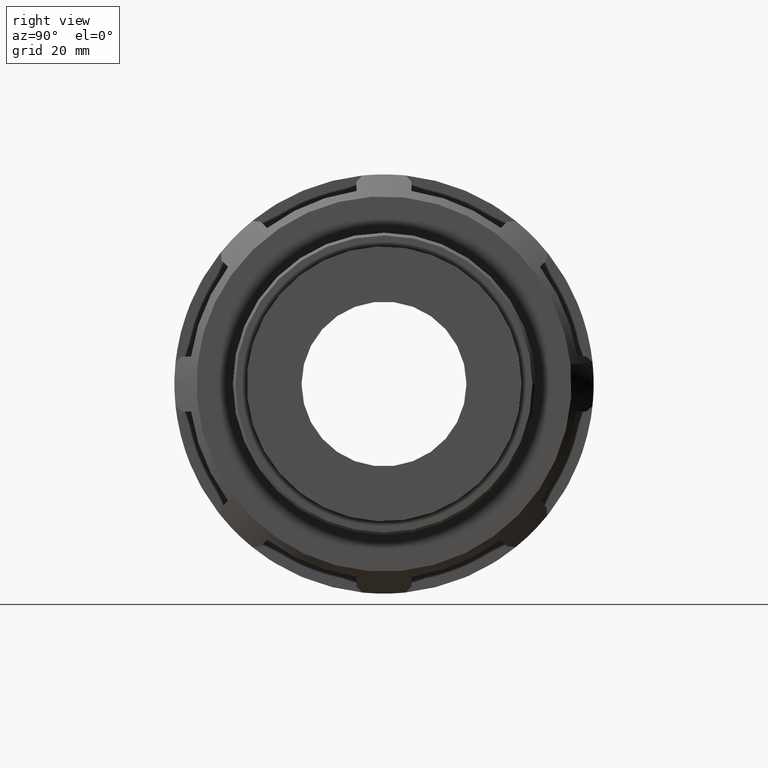
[diagram: clean part render]
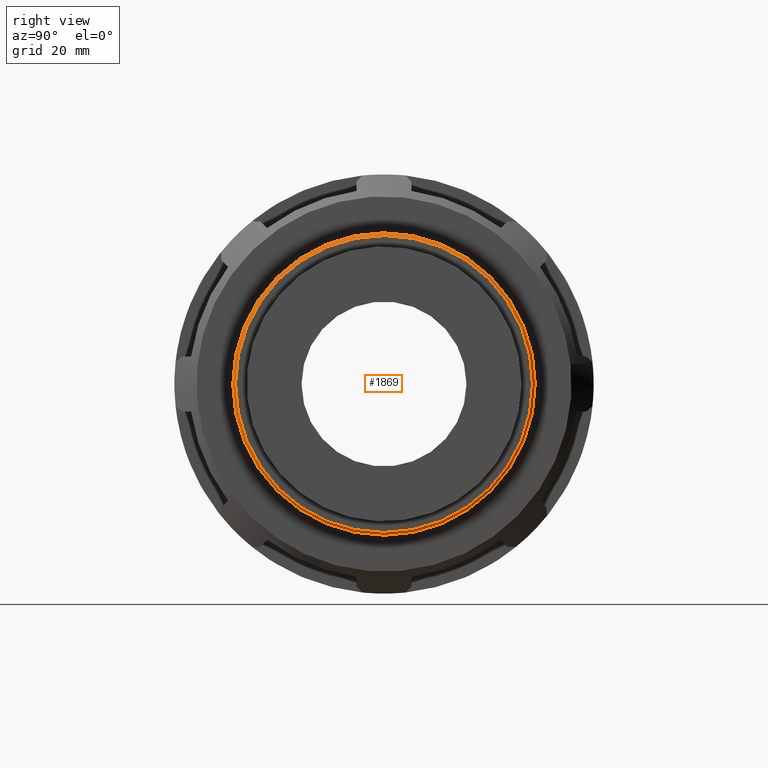
[diagram: same view with one face highlighted and labeled with its STEP entity id]
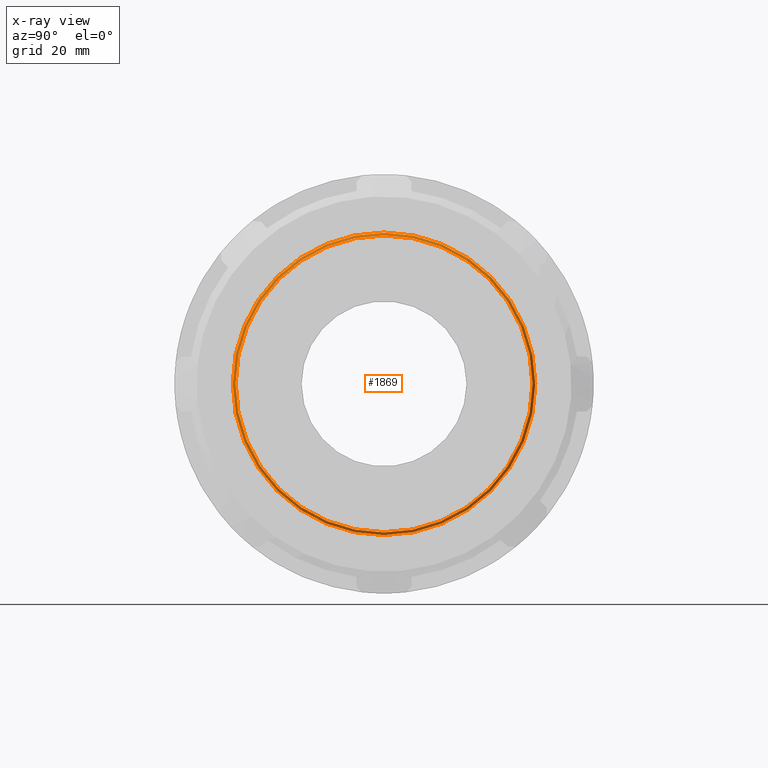
[diagram: x-ray of the same camera — body ghosted, the highlighted face saturated]
A machine part, right view. The second image highlights one B-rep face of the part: STEP entity #1869.
The next image is the same camera in x-ray: the body ghosted, the highlighted face saturated — about 0% of this face is hidden behind the body in this view.
In plain terms, the highlighted conical surface has half-angle 45 deg.
Its self-contained STEP definition (entity closure, byte-faithful):
#47=CONICAL_SURFACE('',#2003,47.89678,44.9999999999997);
#52=FACE_BOUND('',#325,.T.);
#99=CIRCLE('',#2004,48.3362);
#100=CIRCLE('',#2005,47.45736);
#215=FACE_OUTER_BOUND('',#324,.T.);
#324=EDGE_LOOP('',(#1376));
#325=EDGE_LOOP('',(#1377));
#820=VERTEX_POINT('',#2874);
#821=VERTEX_POINT('',#2876);
#1041=EDGE_CURVE('',#820,#820,#99,.T.);
#1042=EDGE_CURVE('',#821,#821,#100,.T.);
#1376=ORIENTED_EDGE('',*,*,#1041,.T.);
#1377=ORIENTED_EDGE('',*,*,#1042,.T.);
#1869=ADVANCED_FACE('',(#215,#52),#47,.T.);
#2003=AXIS2_PLACEMENT_3D('',#2873,#2323,#2324);
#2004=AXIS2_PLACEMENT_3D('',#2875,#2325,#2326);
#2005=AXIS2_PLACEMENT_3D('',#2877,#2327,#2328);
#2323=DIRECTION('center_axis',(-1.,0.,0.));
#2324=DIRECTION('ref_axis',(0.,-1.,0.));
#2325=DIRECTION('center_axis',(1.,0.,0.));
#2326=DIRECTION('ref_axis',(0.,-1.,0.));
#2327=DIRECTION('center_axis',(-1.,0.,0.));
#2328=DIRECTION('ref_axis',(0.,-1.,0.));
#2873=CARTESIAN_POINT('Origin',(103.56058,0.,0.));
#2874=CARTESIAN_POINT('',(103.12116,48.3362,5.91947726129463E-15));
#2875=CARTESIAN_POINT('Origin',(103.12116,0.,0.));
#2876=CARTESIAN_POINT('',(104.,47.45736,-5.81185040199837E-15));
#2877=CARTESIAN_POINT('Origin',(104.,0.,0.));